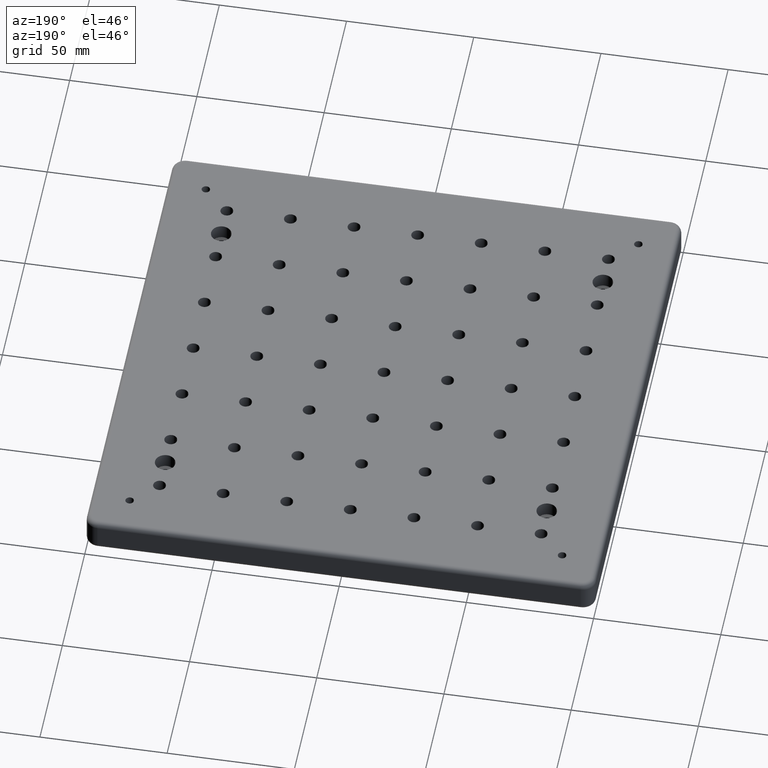
[diagram: clean part render]
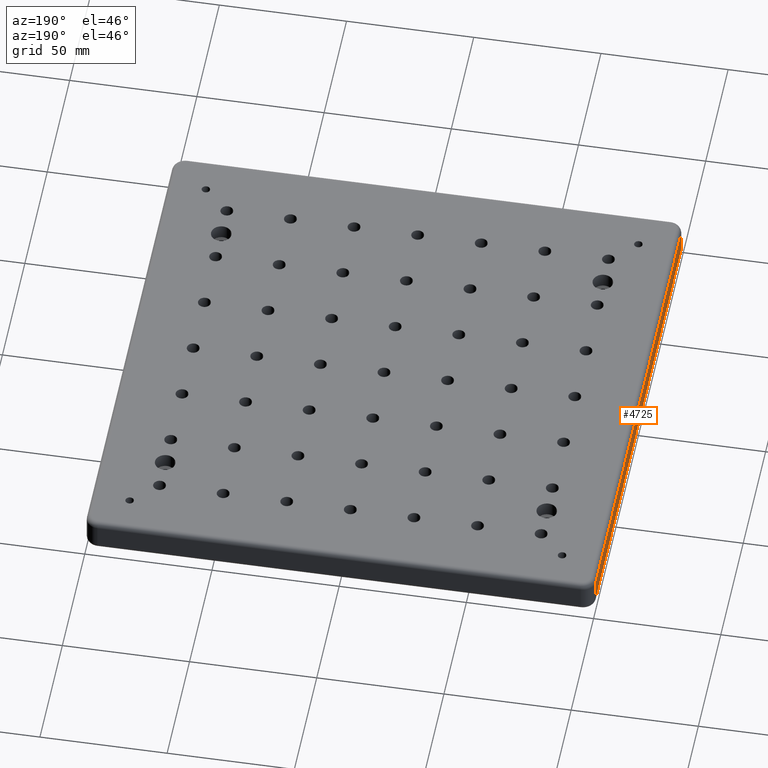
[diagram: same view with one face highlighted and labeled with its STEP entity id]
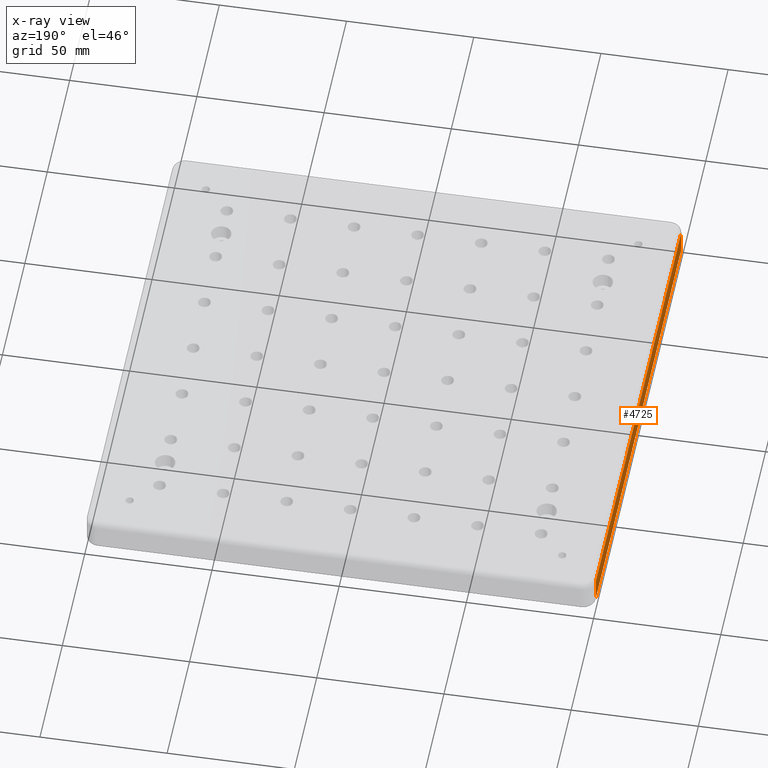
[diagram: x-ray of the same camera — body ghosted, the highlighted face saturated]
A machine part, auxiliary view. The second image highlights one B-rep face of the part: STEP entity #4725.
The next image is the same camera in x-ray: the body ghosted, the highlighted face saturated — about 0% of this face is hidden behind the body in this view.
In plain terms, the highlighted planar face has unit normal (-1, 0, 0).
Its self-contained STEP definition (entity closure, byte-faithful):
#347 = CARTESIAN_POINT ( 'NONE',  ( -99.99999999999997200, -95.00000000000011400, -13.00000000000000000 ) ) ;
#482 = VECTOR ( 'NONE', #2410, 1000.000000000000000 ) ;
#557 = EDGE_CURVE ( 'NONE', #4044, #921, #2323, .T. ) ;
#921 = VERTEX_POINT ( 'NONE', #2863 ) ;
#1082 = LINE ( 'NONE', #347, #4217 ) ;
#1171 = CARTESIAN_POINT ( 'NONE',  ( -99.99999999999997200, -95.00000000000011400, -11.00000000000000000 ) ) ;
#1423 = VERTEX_POINT ( 'NONE', #3757 ) ;
#1617 = VECTOR ( 'NONE', #4864, 1000.000000000000000 ) ;
#1689 = CARTESIAN_POINT ( 'NONE',  ( -99.99999999999997200, 95.00000000000011400, -11.00000000000000000 ) ) ;
#1791 = EDGE_CURVE ( 'NONE', #3049, #1423, #4447, .T. ) ;
#2249 = FACE_OUTER_BOUND ( 'NONE', #3574, .T. ) ;
#2323 = LINE ( 'NONE', #1171, #1617 ) ;
#2410 = DIRECTION ( 'NONE',  ( 0.0000000000000000000, 0.0000000000000000000, 1.000000000000000000 ) ) ;
#2432 = EDGE_CURVE ( 'NONE', #4044, #1423, #4250, .T. ) ;
#2863 = CARTESIAN_POINT ( 'NONE',  ( -99.99999999999997200, -95.00000000000011400, -11.00000000000000000 ) ) ;
#3021 = CARTESIAN_POINT ( 'NONE',  ( -99.99999999999997200, -95.00000000000011400, -13.00000000000000000 ) ) ;
#3028 = DIRECTION ( 'NONE',  ( -0.0000000000000000000, 1.000000000000000000, -0.0000000000000000000 ) ) ;
#3049 = VERTEX_POINT ( 'NONE', #3395 ) ;
#3395 = CARTESIAN_POINT ( 'NONE',  ( -99.99999999999997200, -95.00000000000011400, -2.000000000000003600 ) ) ;
#3556 = DIRECTION ( 'NONE',  ( 0.0000000000000000000, 0.0000000000000000000, 1.000000000000000000 ) ) ;
#3574 = EDGE_LOOP ( 'NONE', ( #3962, #4686, #4221, #4359 ) ) ;
#3757 = CARTESIAN_POINT ( 'NONE',  ( -99.99999999999997200, 95.00000000000011400, -2.000000000000001800 ) ) ;
#3840 = DIRECTION ( 'NONE',  ( 0.0000000000000000000, 0.0000000000000000000, 1.000000000000000000 ) ) ;
#3848 = AXIS2_PLACEMENT_3D ( 'NONE', #3021, #4625, #3840 ) ;
#3862 = PLANE ( 'NONE',  #3848 ) ;
#3962 = ORIENTED_EDGE ( 'NONE', *, *, #2432, .F. ) ;
#4044 = VERTEX_POINT ( 'NONE', #1689 ) ;
#4076 = VECTOR ( 'NONE', #3028, 1000.000000000000000 ) ;
#4217 = VECTOR ( 'NONE', #3556, 1000.000000000000000 ) ;
#4221 = ORIENTED_EDGE ( 'NONE', *, *, #4870, .T. ) ;
#4250 = LINE ( 'NONE', #4881, #482 ) ;
#4270 = CARTESIAN_POINT ( 'NONE',  ( -99.99999999999997200, 95.00000000000011400, -2.000000000000000000 ) ) ;
#4359 = ORIENTED_EDGE ( 'NONE', *, *, #1791, .T. ) ;
#4447 = LINE ( 'NONE', #4270, #4076 ) ;
#4625 = DIRECTION ( 'NONE',  ( -1.000000000000000000, 0.0000000000000000000, 0.0000000000000000000 ) ) ;
#4686 = ORIENTED_EDGE ( 'NONE', *, *, #557, .T. ) ;
#4725 = ADVANCED_FACE ( 'NONE', ( #2249 ), #3862, .T. ) ;
#4864 = DIRECTION ( 'NONE',  ( 0.0000000000000000000, -1.000000000000000000, 0.0000000000000000000 ) ) ;
#4870 = EDGE_CURVE ( 'NONE', #921, #3049, #1082, .T. ) ;
#4881 = CARTESIAN_POINT ( 'NONE',  ( -99.99999999999997200, 95.00000000000011400, -13.00000000000000000 ) ) ;